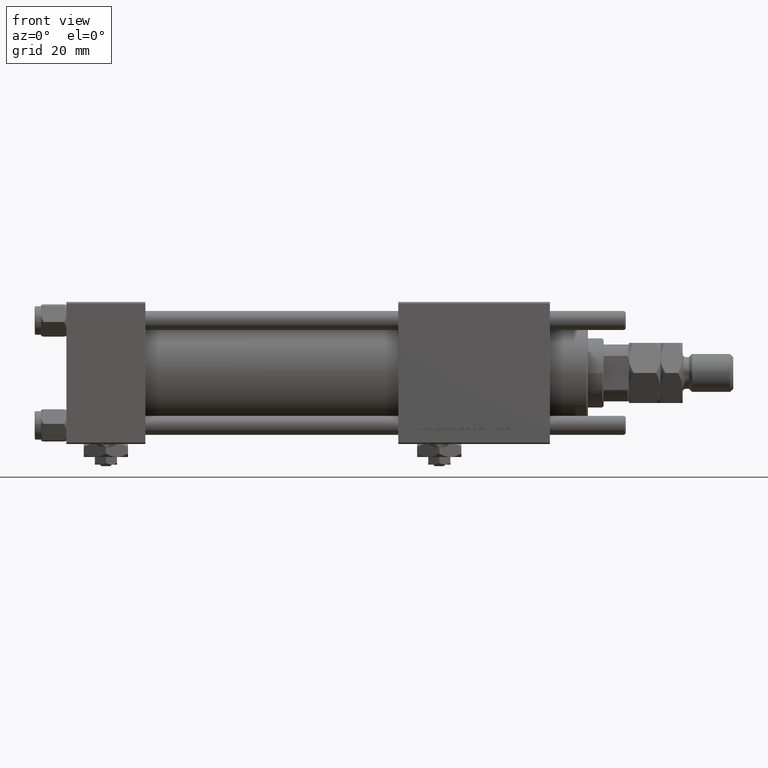
[diagram: clean part render]
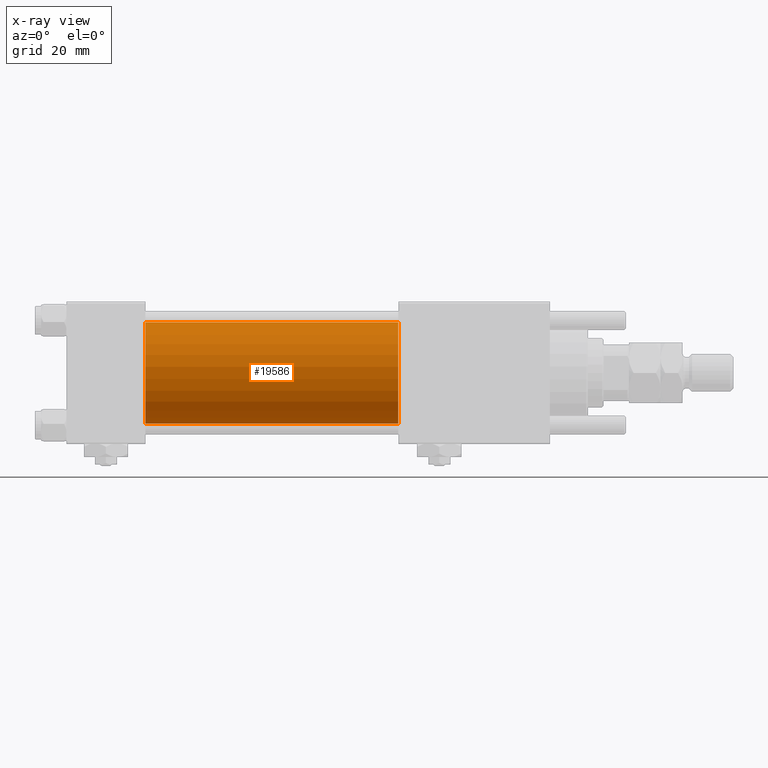
[diagram: x-ray — body ghosted, one internal face saturated and labeled with its STEP entity id]
A machine part, front view, then the same camera in x-ray: the body is ghosted and one INTERNAL B-rep face — a face not visible from any outside direction — is saturated and labeled: STEP entity #19586.
In plain terms, the highlighted cylindrical surface (partial cylindrical patch) has radius 16 mm, axis along (-1, -0, -0).
Its self-contained STEP definition (entity closure, byte-faithful):
#44 = CARTESIAN_POINT ( 'NONE',  ( 25.00000000000000000, -2.602085213965210642E-15, 16.00000000000000000 ) ) ;
#1272 = DIRECTION ( 'NONE',  ( 1.000000000000000000, 0.000000000000000000, 0.000000000000000000 ) ) ;
#2212 = DIRECTION ( 'NONE',  ( -1.000000000000000000, -0.000000000000000000, -0.000000000000000000 ) ) ;
#3456 = ORIENTED_EDGE ( 'NONE', *, *, #57390, .F. ) ;
#6546 = EDGE_LOOP ( 'NONE', ( #28530, #44962, #3456, #19039 ) ) ;
#7334 = VERTEX_POINT ( 'NONE', #53262 ) ;
#7588 = EDGE_CURVE ( 'NONE', #58075, #7334, #52668, .T. ) ;
#9124 = AXIS2_PLACEMENT_3D ( 'NONE', #21273, #49387, #20381 ) ;
#10559 = CARTESIAN_POINT ( 'NONE',  ( 25.00000000000000000, -2.602085213965210642E-15, 0.000000000000000000 ) ) ;
#12433 = EDGE_CURVE ( 'NONE', #58075, #39281, #20544, .T. ) ;
#14464 = CIRCLE ( 'NONE', #19341, 16.00000000000000000 ) ;
#15289 = LINE ( 'NONE', #44314, #40551 ) ;
#16409 = CYLINDRICAL_SURFACE ( 'NONE', #9124, 16.00000000000000000 ) ;
#16582 = VERTEX_POINT ( 'NONE', #32940 ) ;
#19039 = ORIENTED_EDGE ( 'NONE', *, *, #12433, .F. ) ;
#19341 = AXIS2_PLACEMENT_3D ( 'NONE', #10559, #56988, #38360 ) ;
#19586 = ADVANCED_FACE ( 'NONE', ( #54250 ), #16409, .F. ) ;
#19906 = DIRECTION ( 'NONE',  ( 0.000000000000000000, 0.000000000000000000, -1.000000000000000000 ) ) ;
#20381 = DIRECTION ( 'NONE',  ( 0.000000000000000000, 0.000000000000000000, 1.000000000000000000 ) ) ;
#20544 = LINE ( 'NONE', #35207, #28461 ) ;
#21273 = CARTESIAN_POINT ( 'NONE',  ( 105.0000000000000142, -2.602085213965210642E-15, 0.000000000000000000 ) ) ;
#28461 = VECTOR ( 'NONE', #2212, 1000.000000000000000 ) ;
#28530 = ORIENTED_EDGE ( 'NONE', *, *, #7588, .T. ) ;
#32940 = CARTESIAN_POINT ( 'NONE',  ( 25.00000000000000000, -6.426503353294456087E-16, -16.00000000000000000 ) ) ;
#35207 = CARTESIAN_POINT ( 'NONE',  ( 105.0000000000000142, -2.602085213965210642E-15, 16.00000000000000000 ) ) ;
#38025 = AXIS2_PLACEMENT_3D ( 'NONE', #38262, #1272, #19906 ) ;
#38075 = CARTESIAN_POINT ( 'NONE',  ( 105.0000000000000142, -2.602085213965210642E-15, 16.00000000000000000 ) ) ;
#38262 = CARTESIAN_POINT ( 'NONE',  ( 105.0000000000000142, -2.602085213965210642E-15, 0.000000000000000000 ) ) ;
#38360 = DIRECTION ( 'NONE',  ( 0.000000000000000000, 0.000000000000000000, -1.000000000000000000 ) ) ;
#39281 = VERTEX_POINT ( 'NONE', #44 ) ;
#40551 = VECTOR ( 'NONE', #43712, 1000.000000000000000 ) ;
#43712 = DIRECTION ( 'NONE',  ( -1.000000000000000000, -0.000000000000000000, -0.000000000000000000 ) ) ;
#44314 = CARTESIAN_POINT ( 'NONE',  ( 105.0000000000000142, -6.426503353294456087E-16, -16.00000000000000000 ) ) ;
#44962 = ORIENTED_EDGE ( 'NONE', *, *, #46148, .T. ) ;
#46148 = EDGE_CURVE ( 'NONE', #7334, #16582, #15289, .T. ) ;
#49387 = DIRECTION ( 'NONE',  ( -1.000000000000000000, -0.000000000000000000, -0.000000000000000000 ) ) ;
#52668 = CIRCLE ( 'NONE', #38025, 16.00000000000000000 ) ;
#53262 = CARTESIAN_POINT ( 'NONE',  ( 105.0000000000000142, -6.426503353294456087E-16, -16.00000000000000000 ) ) ;
#54250 = FACE_OUTER_BOUND ( 'NONE', #6546, .T. ) ;
#56988 = DIRECTION ( 'NONE',  ( 1.000000000000000000, 0.000000000000000000, 0.000000000000000000 ) ) ;
#57390 = EDGE_CURVE ( 'NONE', #39281, #16582, #14464, .T. ) ;
#58075 = VERTEX_POINT ( 'NONE', #38075 ) ;